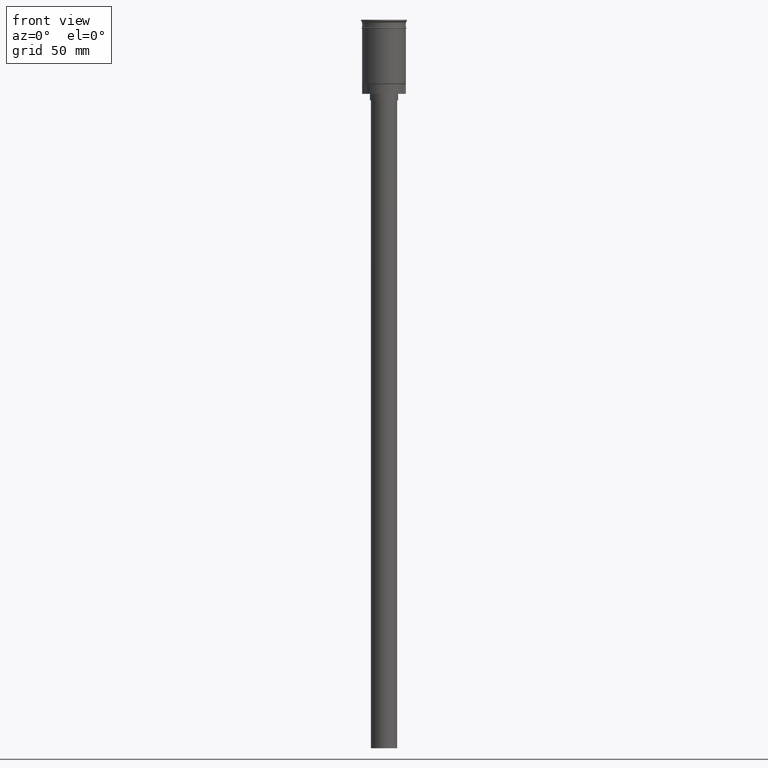
[diagram: clean part render]
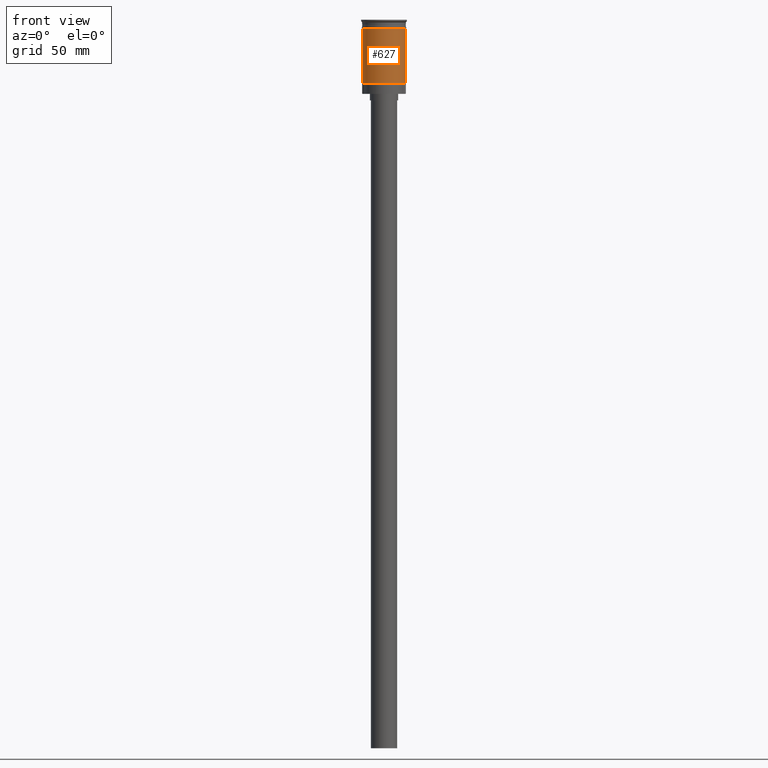
[diagram: same view with one face highlighted and labeled with its STEP entity id]
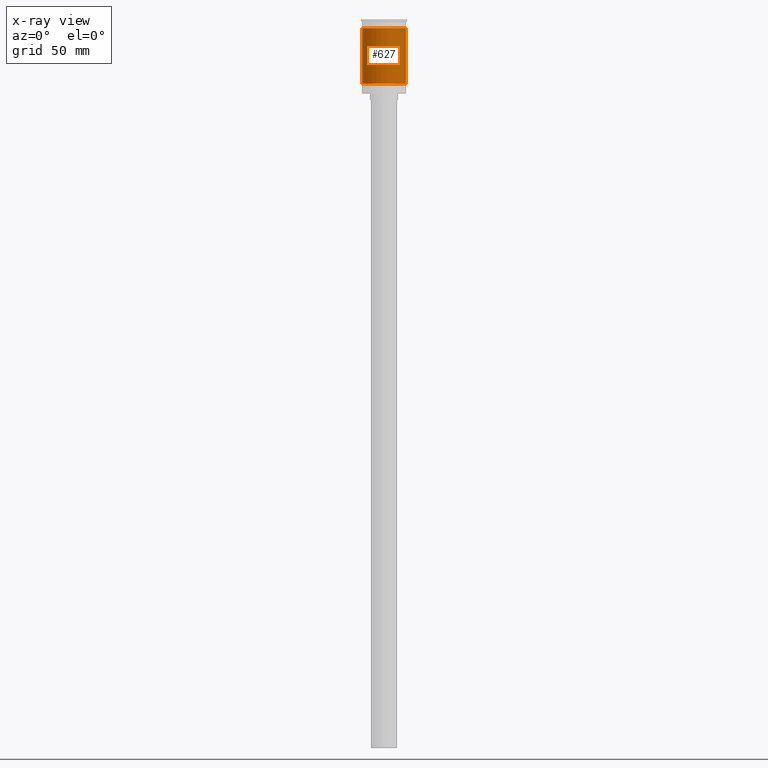
[diagram: x-ray of the same camera — body ghosted, the highlighted face saturated]
A machine part, front view. The second image highlights one B-rep face of the part: STEP entity #627.
The next image is the same camera in x-ray: the body ghosted, the highlighted face saturated — about 0% of this face is hidden behind the body in this view.
In plain terms, the highlighted cylindrical surface (edge-blend (fillet) strip) has radius 10 mm, axis along (-0, -0, 1).
Its self-contained STEP definition (entity closure, byte-faithful):
#94 = VERTEX_POINT ( 'NONE', #536 ) ;
#97 = CARTESIAN_POINT ( 'NONE',  ( 0.000000000000000000, 0.000000000000000000, 0.000000000000000000 ) ) ;
#129 = CARTESIAN_POINT ( 'NONE',  ( 0.000000000000000000, 0.000000000000000000, -29.30000000000002913 ) ) ;
#147 = AXIS2_PLACEMENT_3D ( 'NONE', #622, #885, #359 ) ;
#260 = CARTESIAN_POINT ( 'NONE',  ( -9.999999999999991118, 0.000000000000000000, -29.30000000000002913 ) ) ;
#320 = DIRECTION ( 'NONE',  ( -0.000000000000000000, -0.000000000000000000, 1.000000000000000000 ) ) ;
#359 = DIRECTION ( 'NONE',  ( 1.000000000000000000, 0.000000000000000000, 0.000000000000000000 ) ) ;
#423 = CARTESIAN_POINT ( 'NONE',  ( -9.999999999999994671, 1.224646799147352665E-15, 0.000000000000000000 ) ) ;
#448 = FACE_OUTER_BOUND ( 'NONE', #1151, .T. ) ;
#493 = VERTEX_POINT ( 'NONE', #552 ) ;
#536 = CARTESIAN_POINT ( 'NONE',  ( -10.00000000000000000, 1.224646799147353256E-15, -3.999999999999996447 ) ) ;
#552 = CARTESIAN_POINT ( 'NONE',  ( 9.999999999999994671, 1.224646799147352665E-15, -29.30000000000002913 ) ) ;
#613 = ORIENTED_EDGE ( 'NONE', *, *, #729, .F. ) ;
#622 = CARTESIAN_POINT ( 'NONE',  ( 0.000000000000000000, 0.000000000000000000, -3.999999999999996447 ) ) ;
#627 = ADVANCED_FACE ( 'NONE', ( #448 ), #1208, .T. ) ;
#635 = DIRECTION ( 'NONE',  ( -0.000000000000000000, -0.000000000000000000, 1.000000000000000000 ) ) ;
#696 = VECTOR ( 'NONE', #1025, 1000.000000000000000 ) ;
#729 = EDGE_CURVE ( 'NONE', #94, #1143, #1470, .T. ) ;
#732 = DIRECTION ( 'NONE',  ( -1.000000000000000000, 0.000000000000000000, 0.000000000000000000 ) ) ;
#751 = CARTESIAN_POINT ( 'NONE',  ( 9.999999999999994671, 0.000000000000000000, 0.000000000000000000 ) ) ;
#793 = LINE ( 'NONE', #423, #1083 ) ;
#882 = ORIENTED_EDGE ( 'NONE', *, *, #1028, .T. ) ;
#885 = DIRECTION ( 'NONE',  ( -0.000000000000000000, -0.000000000000000000, 1.000000000000000000 ) ) ;
#925 = DIRECTION ( 'NONE',  ( -0.000000000000000000, -0.000000000000000000, 1.000000000000000000 ) ) ;
#955 = EDGE_CURVE ( 'NONE', #1149, #94, #793, .T. ) ;
#1003 = AXIS2_PLACEMENT_3D ( 'NONE', #97, #320, #1074 ) ;
#1025 = DIRECTION ( 'NONE',  ( -0.000000000000000000, -0.000000000000000000, 1.000000000000000000 ) ) ;
#1028 = EDGE_CURVE ( 'NONE', #1149, #493, #1448, .T. ) ;
#1074 = DIRECTION ( 'NONE',  ( 1.000000000000000000, 0.000000000000000000, 0.000000000000000000 ) ) ;
#1083 = VECTOR ( 'NONE', #925, 1000.000000000000000 ) ;
#1143 = VERTEX_POINT ( 'NONE', #1478 ) ;
#1149 = VERTEX_POINT ( 'NONE', #260 ) ;
#1151 = EDGE_LOOP ( 'NONE', ( #1153, #882, #1188, #613 ) ) ;
#1153 = ORIENTED_EDGE ( 'NONE', *, *, #955, .F. ) ;
#1154 = LINE ( 'NONE', #751, #696 ) ;
#1188 = ORIENTED_EDGE ( 'NONE', *, *, #1571, .T. ) ;
#1208 = CYLINDRICAL_SURFACE ( 'NONE', #1003, 9.999999999999994671 ) ;
#1317 = AXIS2_PLACEMENT_3D ( 'NONE', #129, #635, #732 ) ;
#1448 = CIRCLE ( 'NONE', #1317, 9.999999999999994671 ) ;
#1470 = CIRCLE ( 'NONE', #147, 9.999999999999998224 ) ;
#1478 = CARTESIAN_POINT ( 'NONE',  ( 9.999999999999998224, 0.000000000000000000, -3.999999999999996447 ) ) ;
#1571 = EDGE_CURVE ( 'NONE', #493, #1143, #1154, .T. ) ;